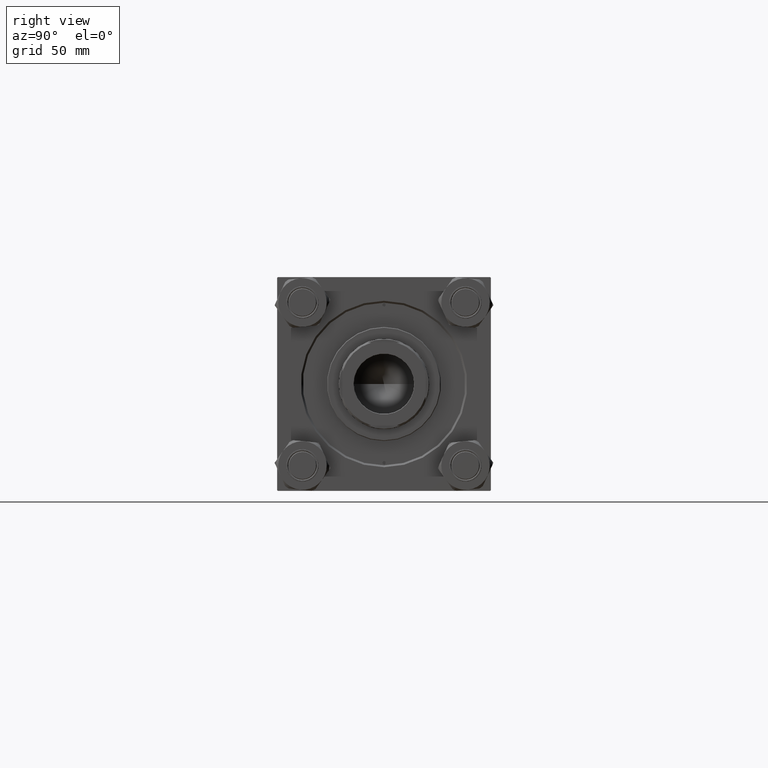
[diagram: clean part render]
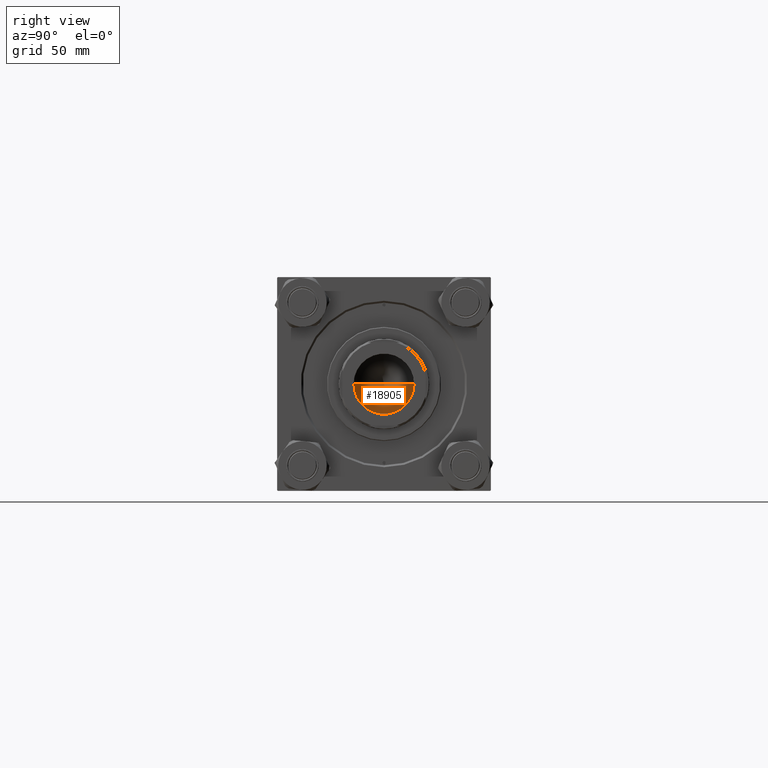
[diagram: same view with one face highlighted and labeled with its STEP entity id]
A machine part, right view. The second image highlights one B-rep face of the part: STEP entity #18905.
In plain terms, the highlighted conical surface has half-angle 59 deg.
Its self-contained STEP definition (entity closure, byte-faithful):
#908 = DIRECTION ( 'NONE',  ( 1.000000000000000000, 0.000000000000000000, 0.000000000000000000 ) ) ;
#4359 = VERTEX_POINT ( 'NONE', #44093 ) ;
#5474 = CARTESIAN_POINT ( 'NONE',  ( 0.000000000000000000, 0.000000000000000000, 309.0000000000000000 ) ) ;
#6585 = DIRECTION ( 'NONE',  ( 0.8571673007021117785, 0.000000000000000000, 0.5150380749100550437 ) ) ;
#10044 = CONICAL_SURFACE ( 'NONE', #19842, 23.24999999999998579, 1.029744258676653423 ) ;
#12848 = DIRECTION ( 'NONE',  ( 1.000000000000000000, 0.000000000000000000, 0.000000000000000000 ) ) ;
#12885 = EDGE_LOOP ( 'NONE', ( #35820, #42791, #25052 ) ) ;
#14994 = CARTESIAN_POINT ( 'NONE',  ( 23.24999999999998579, 0.000000000000000000, 309.0000000000000000 ) ) ;
#16426 = CARTESIAN_POINT ( 'NONE',  ( 0.000000000000000000, 0.000000000000000000, 309.0000000000000000 ) ) ;
#18905 = ADVANCED_FACE ( 'NONE', ( #32262 ), #10044, .F. ) ;
#19842 = AXIS2_PLACEMENT_3D ( 'NONE', #16426, #47046, #12848 ) ;
#21054 = DIRECTION ( 'NONE',  ( -0.000000000000000000, -0.000000000000000000, 1.000000000000000000 ) ) ;
#22394 = EDGE_CURVE ( 'NONE', #34709, #4359, #33687, .T. ) ;
#24726 = AXIS2_PLACEMENT_3D ( 'NONE', #5474, #21054, #908 ) ;
#24978 = LINE ( 'NONE', #29055, #31153 ) ;
#25052 = ORIENTED_EDGE ( 'NONE', *, *, #22394, .T. ) ;
#26692 = CARTESIAN_POINT ( 'NONE',  ( -1.584115414415908206E-14, 0.000000000000000000, 295.0299906076091929 ) ) ;
#29055 = CARTESIAN_POINT ( 'NONE',  ( 23.24999999999998579, 0.000000000000000000, 309.0000000000000000 ) ) ;
#31153 = VECTOR ( 'NONE', #6585, 1000.000000000000000 ) ;
#32262 = FACE_OUTER_BOUND ( 'NONE', #12885, .T. ) ;
#33687 = CIRCLE ( 'NONE', #24726, 23.24999999999998579 ) ;
#34438 = VECTOR ( 'NONE', #44601, 1000.000000000000000 ) ;
#34709 = VERTEX_POINT ( 'NONE', #14994 ) ;
#35820 = ORIENTED_EDGE ( 'NONE', *, *, #41707, .F. ) ;
#36562 = VERTEX_POINT ( 'NONE', #26692 ) ;
#37203 = LINE ( 'NONE', #49196, #34438 ) ;
#41699 = EDGE_CURVE ( 'NONE', #36562, #34709, #24978, .T. ) ;
#41707 = EDGE_CURVE ( 'NONE', #36562, #4359, #37203, .T. ) ;
#42791 = ORIENTED_EDGE ( 'NONE', *, *, #41699, .T. ) ;
#44093 = CARTESIAN_POINT ( 'NONE',  ( -23.24999999999998579, 2.847303808017594561E-15, 309.0000000000000000 ) ) ;
#44601 = DIRECTION ( 'NONE',  ( -0.8571673007021117785, 1.049727191138617956E-16, 0.5150380749100550437 ) ) ;
#47046 = DIRECTION ( 'NONE',  ( -0.000000000000000000, -0.000000000000000000, 1.000000000000000000 ) ) ;
#49196 = CARTESIAN_POINT ( 'NONE',  ( -23.24999999999998579, 2.847303808017594561E-15, 309.0000000000000000 ) ) ;